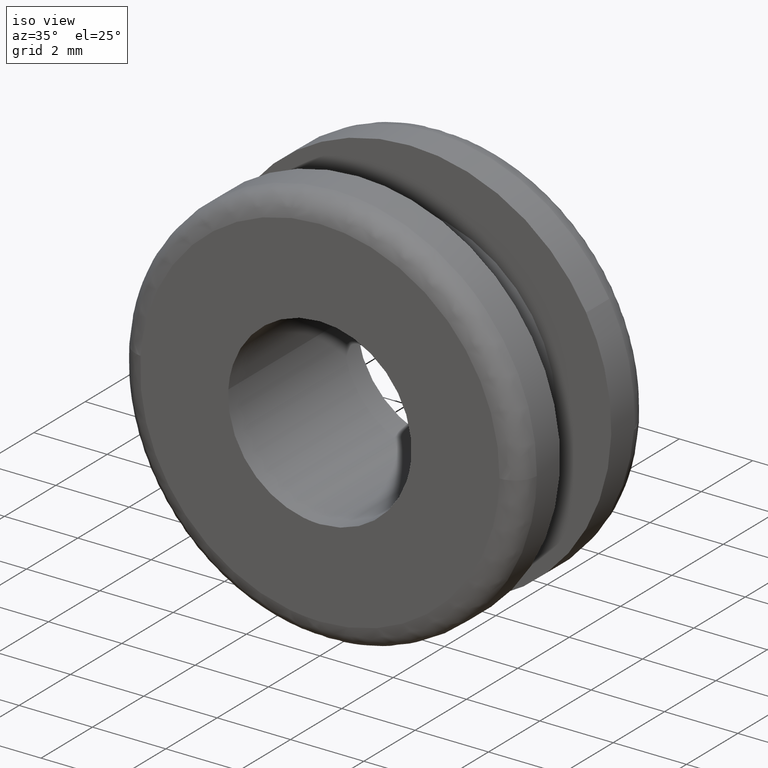
[diagram: clean part render]
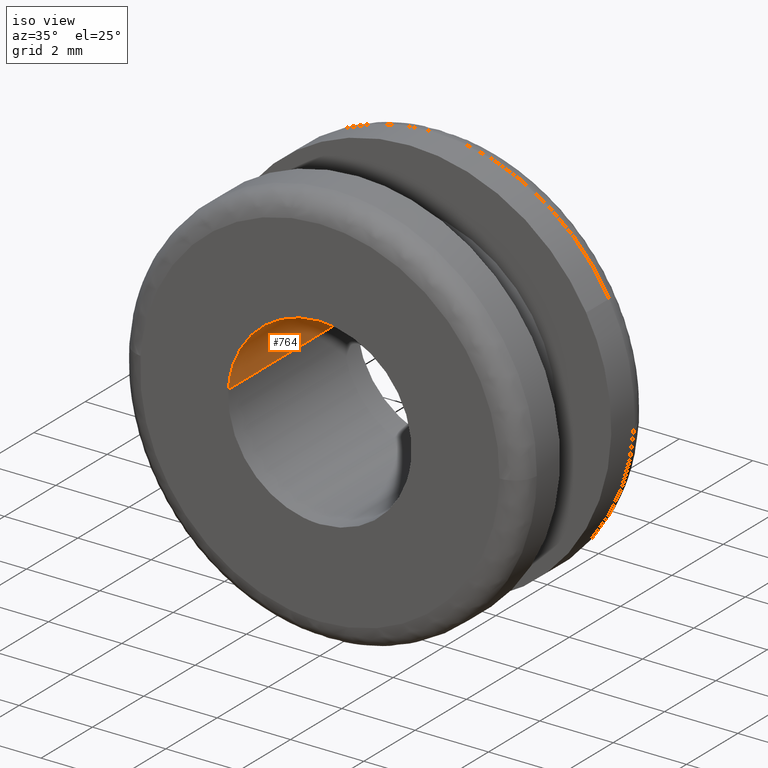
[diagram: same view with one face highlighted and labeled with its STEP entity id]
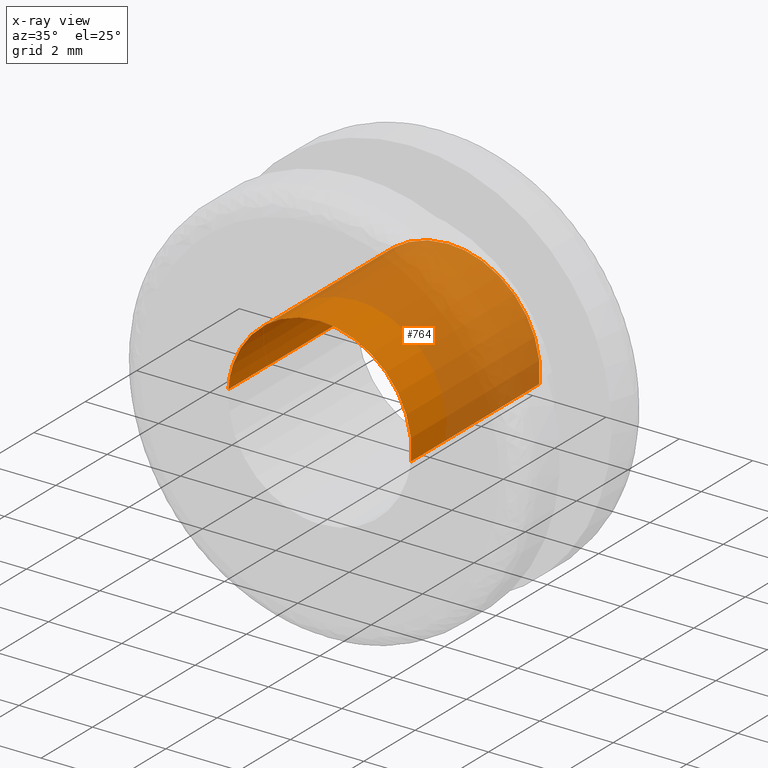
[diagram: x-ray of the same camera — body ghosted, the highlighted face saturated]
A machine part, iso view. The second image highlights one B-rep face of the part: STEP entity #764.
The next image is the same camera in x-ray: the body ghosted, the highlighted face saturated — about 66% of this face is hidden behind the body in this view.
In plain terms, the highlighted face is a freeform B-spline surface patch.
Its self-contained STEP definition (entity closure, byte-faithful):
#662=CARTESIAN_POINT('',(2.482523815909166,5.125000000000002,-0.295085586641896));
#663=CARTESIAN_POINT('',(2.490969038621514,5.125000000000001,-0.224036821594944));
#664=CARTESIAN_POINT('',(2.495336996054667,5.125000000000001,-0.152621348837143));
#665=CARTESIAN_POINT('',(2.647958344891809,5.125000000000001,2.342715647217524));
#666=CARTESIAN_POINT('',(0.152621348837143,5.125000000000001,2.495336996054667));
#667=CARTESIAN_POINT('',(-2.342715647217524,5.125000000000001,2.647958344891809));
#668=CARTESIAN_POINT('',(-2.495336996054667,5.125000000000001,0.152621348837142));
#669=CARTESIAN_POINT('',(2.482523815909166,-0.128125000000001,-0.295085586641896));
#670=CARTESIAN_POINT('',(2.490969038621514,-0.128125000000001,-0.224036821594944));
#671=CARTESIAN_POINT('',(2.495336996054667,-0.128125000000001,-0.152621348837143));
#672=CARTESIAN_POINT('',(2.647958344891809,-0.128125000000001,2.342715647217524));
#673=CARTESIAN_POINT('',(0.152621348837143,-0.128125000000001,2.495336996054667));
#674=CARTESIAN_POINT('',(-2.342715647217524,-0.128125000000001,2.647958344891809));
#675=CARTESIAN_POINT('',(-2.495336996054667,-0.128125000000001,0.152621348837142));
#683=(BOUNDED_SURFACE()B_SPLINE_SURFACE(2,1,((#662,#669),(#663,#670),(#664,#671),(#665,#672),(#666,#673),(#667,#674),(#668,#675)),.UNSPECIFIED.,.F.,.F.,.U.)B_SPLINE_SURFACE_WITH_KNOTS((3,2,2,3),(2,2),(0.0,0.165685424949238,4.307821048680188,8.449956672411137),(0.0,5.253125000000002),.UNSPECIFIED.)GEOMETRIC_REPRESENTATION_ITEM()RATIONAL_B_SPLINE_SURFACE(((0.977505800795127,0.977505800795127),(0.988284271247462,0.988284271247462),(1.0,1.0),(0.707106781186548,0.707106781186548),(1.0,1.0),(0.707106781186548,0.707106781186548),(1.0,1.0)))REPRESENTATION_ITEM('')SURFACE());
#684=CARTESIAN_POINT('',(2.482524208177017,4.999999999999985,-0.295082286496545));
#685=VERTEX_POINT('',#684);
#686=CARTESIAN_POINT('',(0.0,5.0,2.500000000000000));
#687=VERTEX_POINT('',#686);
#688=CARTESIAN_POINT('',(2.482524208177017,4.999999999999985,-0.295082286496545));
#689=CARTESIAN_POINT('',(2.500000000000000,5.0,-0.148058631613071));
#690=CARTESIAN_POINT('',(2.500000000000000,5.0,-1.928755E-016));
#691=CARTESIAN_POINT('',(2.500000000000000,5.000000000000001,2.500000000000000));
#692=CARTESIAN_POINT('',(0.0,5.0,2.500000000000000));
#700=(BOUNDED_CURVE()B_SPLINE_CURVE(2,(#688,#689,#690,#691,#692),.UNSPECIFIED.,.F.,.U.)B_SPLINE_CURVE_WITH_KNOTS((3,2,3),(0.229562698180289,0.250000000000000,0.500000000000000),.UNSPECIFIED.)CURVE()GEOMETRIC_REPRESENTATION_ITEM()RATIONAL_B_SPLINE_CURVE((0.956027194540257,0.976056211544651,1.0,0.707106781186548,1.0))REPRESENTATION_ITEM(''));
#701=EDGE_CURVE('',#685,#687,#700,.T.);
#702=ORIENTED_EDGE('',*,*,#701,.F.);
#703=CARTESIAN_POINT('',(2.482524203454801,-4.922608E-016,-0.295082326224942));
#704=VERTEX_POINT('',#703);
#705=CARTESIAN_POINT('',(2.482524208177017,4.999999999999985,-0.295082286496545));
#706=CARTESIAN_POINT('',(2.482524203454801,-4.922608E-016,-0.295082326224942));
#707=QUASI_UNIFORM_CURVE('',1,(#705,#706),.UNSPECIFIED.,.F.,.U.);
#708=EDGE_CURVE('',#685,#704,#707,.T.);
#709=ORIENTED_EDGE('',*,*,#708,.T.);
#710=CARTESIAN_POINT('',(0.0,-4.592274E-016,2.500000000000000));
#711=VERTEX_POINT('',#710);
#712=CARTESIAN_POINT('',(2.482524203454801,-4.922608E-016,-0.295082326224942));
#713=CARTESIAN_POINT('',(2.500000000000000,-4.592274E-016,-0.148058651687264));
#714=CARTESIAN_POINT('',(2.500000000000000,-4.592274E-016,-1.928755E-016));
#715=CARTESIAN_POINT('',(2.500000000000000,-4.592274E-016,2.500000000000000));
#716=CARTESIAN_POINT('',(0.0,-4.592274E-016,2.500000000000000));
#724=(BOUNDED_CURVE()B_SPLINE_CURVE(2,(#712,#713,#714,#715,#716),.UNSPECIFIED.,.F.,.U.)B_SPLINE_CURVE_WITH_KNOTS((3,2,3),(0.229562695475691,0.250000000000000,0.500000000000000),.UNSPECIFIED.)CURVE()GEOMETRIC_REPRESENTATION_ITEM()RATIONAL_B_SPLINE_CURVE((0.956027189239122,0.976056208376017,1.0,0.707106781186548,1.0))REPRESENTATION_ITEM(''));
#725=EDGE_CURVE('',#704,#711,#724,.T.);
#726=ORIENTED_EDGE('',*,*,#725,.T.);
#727=CARTESIAN_POINT('',(-2.495337091099553,-8.055419E-016,0.152619794851108));
#728=VERTEX_POINT('',#727);
#729=CARTESIAN_POINT('',(0.0,-4.592274E-016,2.500000000000000));
#730=CARTESIAN_POINT('',(-2.351766634577265,-4.592274E-016,2.500000000000000));
#731=CARTESIAN_POINT('',(-2.495337091099553,-8.055419E-016,0.152619794851108));
#739=(BOUNDED_CURVE()B_SPLINE_CURVE(2,(#729,#730,#731),.UNSPECIFIED.,.F.,.U.)B_SPLINE_CURVE_WITH_KNOTS((3,3),(0.500000000000000,0.739333069696522),.UNSPECIFIED.)CURVE()GEOMETRIC_REPRESENTATION_ITEM()RATIONAL_B_SPLINE_CURVE((1.0,0.719603867392325,0.976072271968873))REPRESENTATION_ITEM(''));
#740=EDGE_CURVE('',#711,#728,#739,.T.);
#741=ORIENTED_EDGE('',*,*,#740,.T.);
#742=CARTESIAN_POINT('',(-2.495337092260236,5.000000000000004,0.152619775873721));
#743=VERTEX_POINT('',#742);
#744=CARTESIAN_POINT('',(-2.495337092260236,5.000000000000004,0.152619775873721));
#745=CARTESIAN_POINT('',(-2.495337091099553,-8.055419E-016,0.152619794851108));
#746=QUASI_UNIFORM_CURVE('',1,(#744,#745),.UNSPECIFIED.,.F.,.U.);
#747=EDGE_CURVE('',#743,#728,#746,.T.);
#748=ORIENTED_EDGE('',*,*,#747,.F.);
#749=CARTESIAN_POINT('',(0.0,5.0,2.500000000000000));
#750=CARTESIAN_POINT('',(-2.351766652496199,5.0,2.500000000000000));
#751=CARTESIAN_POINT('',(-2.495337092260237,5.000000000000004,0.152619775873721));
#759=(BOUNDED_CURVE()B_SPLINE_CURVE(2,(#749,#750,#751),.UNSPECIFIED.,.F.,.U.)B_SPLINE_CURVE_WITH_KNOTS((3,3),(0.500000000000000,0.739333071008765),.UNSPECIFIED.)CURVE()GEOMETRIC_REPRESENTATION_ITEM()RATIONAL_B_SPLINE_CURVE((1.0,0.719603865854937,0.976072274781262))REPRESENTATION_ITEM(''));
#760=EDGE_CURVE('',#687,#743,#759,.T.);
#761=ORIENTED_EDGE('',*,*,#760,.F.);
#762=EDGE_LOOP('',(#702,#709,#726,#741,#748,#761));
#763=FACE_OUTER_BOUND('',#762,.T.);
#764=ADVANCED_FACE('',(#763),#683,.F.);